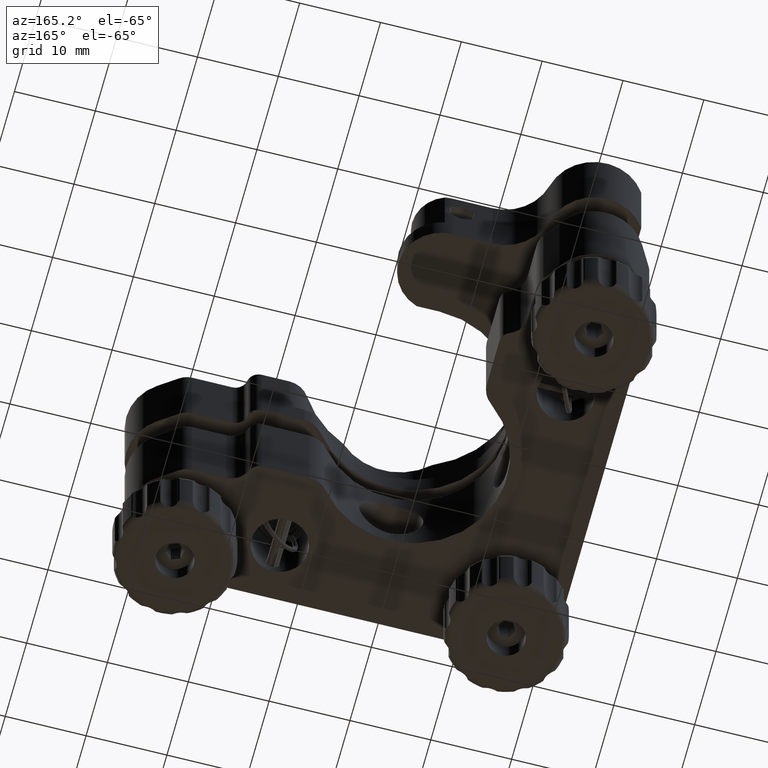
[diagram: clean part render]
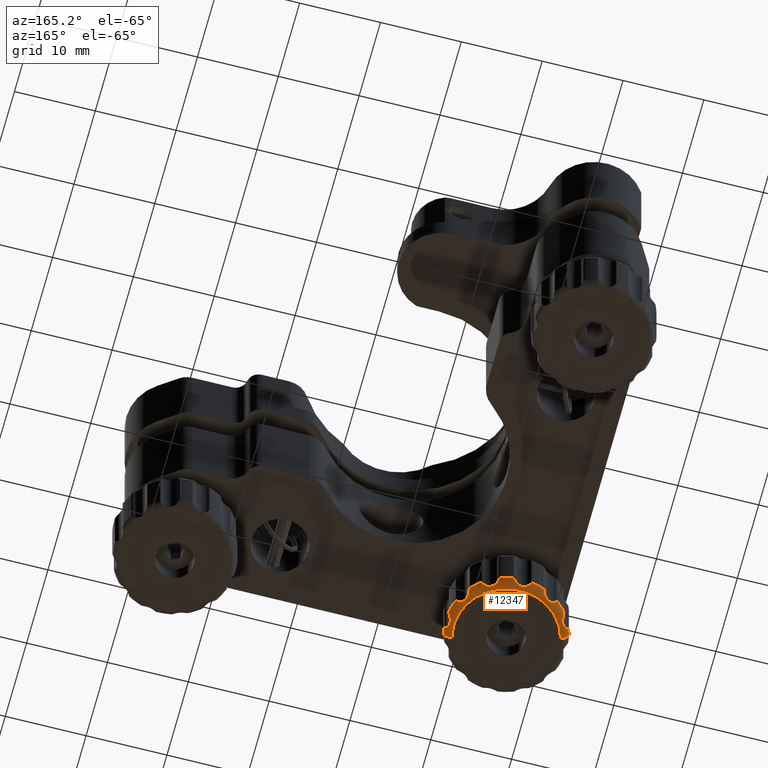
[diagram: same view with one face highlighted and labeled with its STEP entity id]
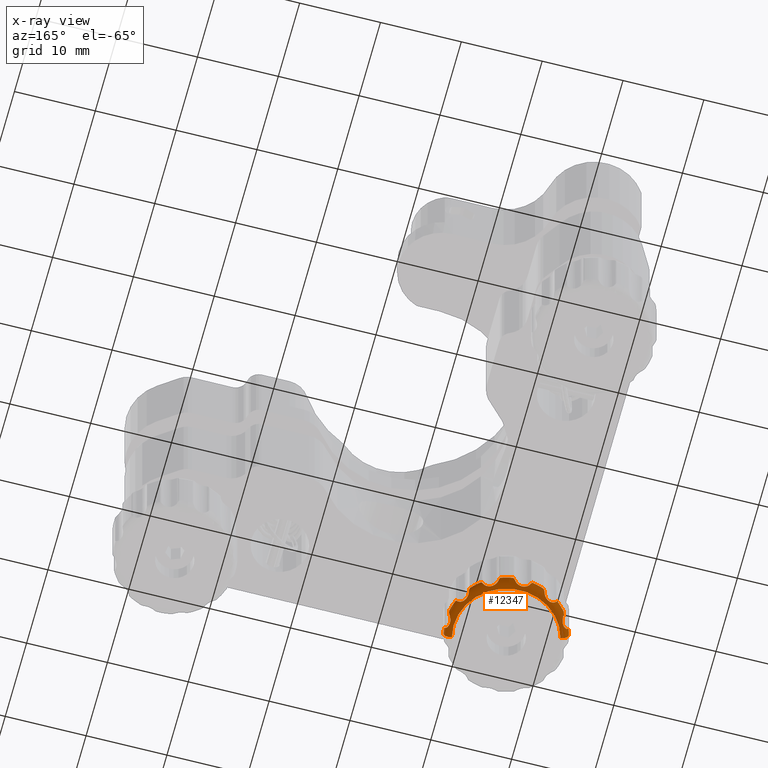
[diagram: x-ray of the same camera — body ghosted, the highlighted face saturated]
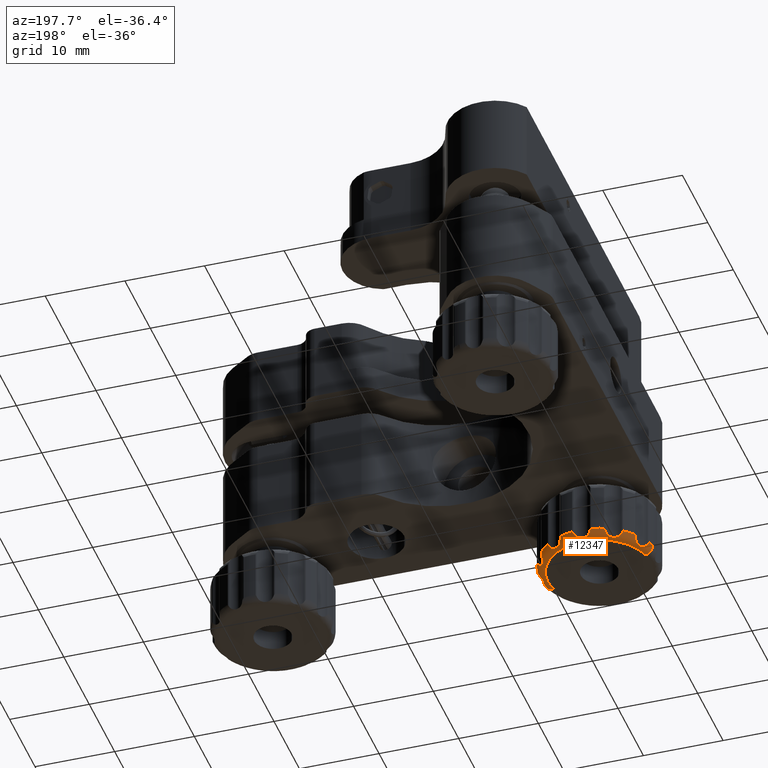
[diagram: same view with one face highlighted and labeled with its STEP entity id]
A machine part, auxiliary view. The second image highlights one B-rep face of the part: STEP entity #12347.
The next image is the same camera in x-ray: the body ghosted, the highlighted face saturated — about 0% of this face is hidden behind the body in this view.
A second angle (auxiliary view) of the same face is appended — the face is thin or edge-on in the first view.
In plain terms, the highlighted toroidal blend (fillet) surface has major radius 6.5 mm and minor (blend) radius 1 mm.
Its self-contained STEP definition (entity closure, byte-faithful):
#107 = CARTESIAN_POINT ( 'NONE',  ( -8.273535023739546200, -14.58432369213429100, -22.45687558293358100 ) ) ;
#113 = CARTESIAN_POINT ( 'NONE',  ( -8.097607238891740200, -14.29118515628994700, -21.97501680634403000 ) ) ;
#124 = CARTESIAN_POINT ( 'NONE',  ( -21.80055024076915500, -13.90216813664769400, -21.82911768350748400 ) ) ;
#156 = CARTESIAN_POINT ( 'NONE',  ( -20.07325600387595400, -9.679605151737613200, -22.26056249868545900 ) ) ;
#200 = CARTESIAN_POINT ( 'NONE',  ( -22.45654522192810600, -12.77960951053181100, -22.12018429843476500 ) ) ;
#206 = CARTESIAN_POINT ( 'NONE',  ( -12.74601820328664400, -8.629246698502537800, -22.26056249868546600 ) ) ;
#209 = CARTESIAN_POINT ( 'NONE',  ( -9.679605151737577600, -10.92674399612406700, -22.26056249868544900 ) ) ;
#224 = B_SPLINE_CURVE_WITH_KNOTS ( 'NONE', 3,
 ( #17145, #10446, #5530, #2470, #5735, #17215, #13886, #757, #10373, #13591, #2313, #10515, #13669, #18772 ),
 .UNSPECIFIED., .F., .F.,
 ( 4, 2, 2, 2, 2, 2, 4 ),
 ( 0.0004549188434784908400, 0.0007454011220209159700, 0.001035883400563341200, 0.001616847957648191500, 0.002197812514733041700, 0.002488294793275470300, 0.002778777071817899400 ),
 .UNSPECIFIED. ) ;
#261 = EDGE_CURVE ( 'NONE', #12622, #15698, #15291, .T. ) ;
#414 = AXIS2_PLACEMENT_3D ( 'NONE', #7455, #10728, #817 ) ;
#465 = B_SPLINE_CURVE_WITH_KNOTS ( 'NONE', 3,
 ( #15938, #21113, #6131, #11059 ),
 .UNSPECIFIED., .F., .F.,
 ( 4, 4 ),
 ( 6.470983621998903000E-016, 0.0004984791478706534600 ),
 .UNSPECIFIED. ) ;
#524 = CARTESIAN_POINT ( 'NONE',  ( -14.40978505370286400, -8.079660966581750300, -21.82911768350747600 ) ) ;
#563 = ORIENTED_EDGE ( 'NONE', *, *, #21157, .F. ) ;
#627 = CARTESIAN_POINT ( 'NONE',  ( -9.252819279464214100, -12.23228101995630700, -22.67200738771641300 ) ) ;
#662 = ORIENTED_EDGE ( 'NONE', *, *, #13350, .T. ) ;
#682 = ORIENTED_EDGE ( 'NONE', *, *, #12650, .T. ) ;
#702 = CARTESIAN_POINT ( 'NONE',  ( -8.079660966581737800, -16.59021494629714900, -21.82911768350748000 ) ) ;
#717 = CARTESIAN_POINT ( 'NONE',  ( -18.26601567763033500, -8.528690419217966200, -21.82911768350747600 ) ) ;
#757 = CARTESIAN_POINT ( 'NONE',  ( -21.70392762690231700, -12.25176406899010900, -22.69505438310907400 ) ) ;
#817 = DIRECTION ( 'NONE',  ( 0.9693154216567880800, -0.2458202866695973500, -4.625929269271472100E-016 ) ) ;
#818 = CARTESIAN_POINT ( 'NONE',  ( -14.95176363915637000, -8.349713461213385200, -22.57261814503169700 ) ) ;
#846 = CARTESIAN_POINT ( 'NONE',  ( -8.705708844528828600, -12.56243734341421900, -22.26056249868348400 ) ) ;
#883 = CARTESIAN_POINT ( 'NONE',  ( -21.44114946354736900, -11.08475258694699100, -22.26056249868347300 ) ) ;
#893 = CARTESIAN_POINT ( 'NONE',  ( -15.20633728887850600, -8.455923303961803600, -22.67200738771642700 ) ) ;
#915 = B_SPLINE_CURVE_WITH_KNOTS ( 'NONE', 3,
 ( #5438, #3792, #10286, #524 ),
 .UNSPECIFIED., .F., .F.,
 ( 4, 4 ),
 ( 6.435192831304974600E-016, 0.0004984791478706576900 ),
 .UNSPECIFIED. ) ;
#999 = CIRCLE ( 'NONE', #19633, 7.500000000000021300 ) ;
#1017 = VERTEX_POINT ( 'NONE', #12284 ) ;
#1020 = AXIS2_PLACEMENT_3D ( 'NONE', #124, #3199, #1619 ) ;
#1131 = CARTESIAN_POINT ( 'NONE',  ( -8.363806012486376700, -16.02208954429704900, -22.59052391230119400 ) ) ;
#1140 = CARTESIAN_POINT ( 'NONE',  ( -19.43662407815705300, -9.650458202698729300, -22.67155288972862700 ) ) ;
#1145 = DIRECTION ( 'NONE',  ( 0.9693154216567918500, -0.2458202866695825800, -4.625929269271472100E-016 ) ) ;
#1194 = CARTESIAN_POINT ( 'NONE',  ( -15.49999999999999500, -15.49999999999999600, -21.82911768350748400 ) ) ;
#1307 = CARTESIAN_POINT ( 'NONE',  ( -16.31903320796983100, -8.327165519919296000, -22.52800768679513200 ) ) ;
#1339 = CARTESIAN_POINT ( 'NONE',  ( -11.45007011483775900, -9.581788393494681700, -22.57261814503168300 ) ) ;
#1508 = CARTESIAN_POINT ( 'NONE',  ( -15.49999999999999500, -15.49999999999999600, -21.82911768350748400 ) ) ;
#1550 = CIRCLE ( 'NONE', #18781, 0.9999999999999997800 ) ;
#1560 = CARTESIAN_POINT ( 'NONE',  ( -9.693747241942546100, -10.75193925632449400, -21.97501680634165300 ) ) ;
#1602 = CARTESIAN_POINT ( 'NONE',  ( -8.172762199410696500, -14.44964154676494800, -22.26056249868547000 ) ) ;
#1619 = DIRECTION ( 'NONE',  ( 0.9693154216567914100, -0.2458202866695847200, 0.0000000000000000000 ) ) ;
#1650 = B_SPLINE_CURVE_WITH_KNOTS ( 'NONE', 3,
 ( #14037, #4110, #2540, #10824 ),
 .UNSPECIFIED., .F., .F.,
 ( 4, 4 ),
 ( -6.324575239409199100E-006, 0.0004951179910539884400 ),
 .UNSPECIFIED. ) ;
#1678 = CARTESIAN_POINT ( 'NONE',  ( -16.55035845323506600, -8.172762199410717800, -22.26056249868545900 ) ) ;
#1773 = CARTESIAN_POINT ( 'NONE',  ( -22.54309943192281200, -12.92225866463510400, -21.82911768350747600 ) ) ;
#1794 = EDGE_CURVE ( 'NONE', #21056, #13386, #11750, .T. ) ;
#1815 = VERTEX_POINT ( 'NONE', #12831 ) ;
#1859 = CARTESIAN_POINT ( 'NONE',  ( -10.84567664421206100, -9.618905365515097100, -21.82911768350746200 ) ) ;
#2183 = CARTESIAN_POINT ( 'NONE',  ( -8.819570278337010900, -12.51824535450036400, -22.41287997174746500 ) ) ;
#2195 = ORIENTED_EDGE ( 'NONE', *, *, #3971, .T. ) ;
#2252 = CARTESIAN_POINT ( 'NONE',  ( -9.033552032651055400, -12.39964334637559400, -22.57261814503168700 ) ) ;
#2313 = CARTESIAN_POINT ( 'NONE',  ( -22.12137348087575700, -12.62288632460462200, -22.52800768679514200 ) ) ;
#2319 = EDGE_CURVE ( 'NONE', #15701, #15698, #224, .T. ) ;
#2363 = ORIENTED_EDGE ( 'NONE', *, *, #8858, .F. ) ;
#2436 = ORIENTED_EDGE ( 'NONE', *, *, #3817, .T. ) ;
#2470 = CARTESIAN_POINT ( 'NONE',  ( -21.41564636080641600, -11.36231130360895300, -22.52836675292864400 ) ) ;
#2540 = CARTESIAN_POINT ( 'NONE',  ( -20.16434964003091000, -9.665800116942911300, -22.12018429843477200 ) ) ;
#2619 = CARTESIAN_POINT ( 'NONE',  ( -8.499463658171862300, -15.52993644919441800, -22.69549184366381300 ) ) ;
#2691 = CARTESIAN_POINT ( 'NONE',  ( -8.501934455099435800, -15.27024179358704200, -22.69477817477042000 ) ) ;
#2703 = CARTESIAN_POINT ( 'NONE',  ( -15.49999999999999500, -15.49999999999999600, -21.82911768350748400 ) ) ;
#2736 = EDGE_CURVE ( 'NONE', #16547, #7758, #5855, .T. ) ;
#2855 = DIRECTION ( 'NONE',  ( 2.162815297346536200E-016, -1.037800054468342500E-016, 1.000000000000000000 ) ) ;
#2867 = CARTESIAN_POINT ( 'NONE',  ( -21.44114946354736900, -11.08475258694699100, -22.26056249868347300 ) ) ;
#2966 = ORIENTED_EDGE ( 'NONE', *, *, #10346, .T. ) ;
#3051 = CARTESIAN_POINT ( 'NONE',  ( -18.76771898004367900, -9.252819279464230100, -22.67200738771642700 ) ) ;
#3135 = CARTESIAN_POINT ( 'NONE',  ( -8.558591890166331600, -12.65862234499994100, -21.97415457370137300 ) ) ;
#3161 = DIRECTION ( 'NONE',  ( 0.9693154216567911900, -0.2458202866695853000, -4.625929269271471100E-016 ) ) ;
#3199 = DIRECTION ( 'NONE',  ( -0.2458202866695841600, -0.9693154216567915200, -4.742917209853352000E-017 ) ) ;
#3225 = CARTESIAN_POINT ( 'NONE',  ( -10.90925306635213400, -9.568590714104969300, -21.97415457369893600 ) ) ;
#3252 = CARTESIAN_POINT ( 'NONE',  ( -8.454740075070004600, -15.01708797932666300, -22.65639691560448600 ) ) ;
#3318 = CARTESIAN_POINT ( 'NONE',  ( -8.217035436622934300, -14.50506699690493100, -22.36864503163590400 ) ) ;
#3373 = EDGE_CURVE ( 'NONE', #20609, #3718, #9447, .T. ) ;
#3436 = ORIENTED_EDGE ( 'NONE', *, *, #1794, .F. ) ;
#3630 = CARTESIAN_POINT ( 'NONE',  ( -12.92225866463505000, -8.456900568077209400, -21.82911768350748700 ) ) ;
#3718 = VERTEX_POINT ( 'NONE', #17154 ) ;
#3792 = CARTESIAN_POINT ( 'NONE',  ( -14.57643678750349600, -8.087769997951433300, -22.12017363735117200 ) ) ;
#3812 = FACE_OUTER_BOUND ( 'NONE', #5450, .T. ) ;
#3817 = EDGE_CURVE ( 'NONE', #5057, #13386, #1650, .T. ) ;
#3861 = CARTESIAN_POINT ( 'NONE',  ( -11.08475258694694600, -9.558850536452631300, -22.26056249868345900 ) ) ;
#3864 = CARTESIAN_POINT ( 'NONE',  ( -22.54309943192281200, -12.92225866463510400, -21.82911768350747600 ) ) ;
#3969 = CARTESIAN_POINT ( 'NONE',  ( -9.687644669754114100, -10.97979340454228100, -22.34231332994502500 ) ) ;
#3971 = EDGE_CURVE ( 'NONE', #21056, #17721, #465, .T. ) ;
#4110 = CARTESIAN_POINT ( 'NONE',  ( -20.24806074367697300, -9.693747241943805500, -21.97501680634272200 ) ) ;
#4171 = VERTEX_POINT ( 'NONE', #11475 ) ;
#4177 = VERTEX_POINT ( 'NONE', #16512 ) ;
#4215 = VERTEX_POINT ( 'NONE', #20304 ) ;
#4511 = B_SPLINE_CURVE_WITH_KNOTS ( 'NONE', 3,
 ( #846, #11961, #2183, #13609, #2252, #627, #8967, #13827, #17090, #20302, #8901, #7117, #3969, #20230 ),
 .UNSPECIFIED., .F., .F.,
 ( 4, 2, 2, 2, 2, 2, 4 ),
 ( 0.0004549188434784903000, 0.0007454011220209277900, 0.001035883400563365300, 0.001616847957648233100, 0.002197812514733101100, 0.002488294793275536700, 0.002778777071817973100 ),
 .UNSPECIFIED. ) ;
#4528 = ORIENTED_EDGE ( 'NONE', *, *, #6792, .F. ) ;
#4778 = B_SPLINE_CURVE_WITH_KNOTS ( 'NONE', 3,
 ( #3252, #16493, #8108, #107, #3318, #1602 ),
 .UNSPECIFIED., .F., .F.,
 ( 4, 2, 4 ),
 ( 0.002010685543980218800, 0.002394731307899068000, 0.002778777071817917600 ),
 .UNSPECIFIED. ) ;
#4803 = EDGE_CURVE ( 'NONE', #1017, #6492, #9889, .T. ) ;
#5040 = CARTESIAN_POINT ( 'NONE',  ( -8.111626302892613400, -14.21083976484987100, -21.82911768350748400 ) ) ;
#5057 = VERTEX_POINT ( 'NONE', #19618 ) ;
#5099 = CARTESIAN_POINT ( 'NONE',  ( -8.111626302892613400, -14.21083976484987100, -21.82911768350748400 ) ) ;
#5153 = B_SPLINE_CURVE_WITH_KNOTS ( 'NONE', 3,
 ( #15486, #5680, #17158, #702 ),
 .UNSPECIFIED., .F., .F.,
 ( 4, 4 ),
 ( 6.631932020556458400E-016, 0.0004984791478706529200 ),
 .UNSPECIFIED. ) ;
#5283 = EDGE_CURVE ( 'NONE', #3718, #10560, #10650, .T. ) ;
#5287 = EDGE_CURVE ( 'NONE', #16032, #4177, #13219, .T. ) ;
#5388 = ORIENTED_EDGE ( 'NONE', *, *, #3373, .F. ) ;
#5438 = CARTESIAN_POINT ( 'NONE',  ( -14.64685830807624500, -8.147189930361157900, -22.26056249868347300 ) ) ;
#5450 = EDGE_LOOP ( 'NONE', ( #5388, #4528, #5727, #9496, #12511, #2363, #2436, #3436, #2195, #14480, #14106, #10042, #682, #20946, #662, #5687, #14992, #13655, #2966, #563, #7883, #9438, #7747, #10066, #15947, #19815, #6575, #15198, #19622 ) ) ;
#5530 = CARTESIAN_POINT ( 'NONE',  ( -21.42249013168643800, -11.20545547559309300, -22.41287997174747900 ) ) ;
#5652 = CARTESIAN_POINT ( 'NONE',  ( -16.62234533887099600, -8.115259870500892700, -22.12018429843476500 ) ) ;
#5680 = CARTESIAN_POINT ( 'NONE',  ( -8.087769997951431500, -16.42356321249651100, -22.12017363735117200 ) ) ;
#5687 = ORIENTED_EDGE ( 'NONE', *, *, #2736, .F. ) ;
#5727 = ORIENTED_EDGE ( 'NONE', *, *, #261, .T. ) ;
#5735 = CARTESIAN_POINT ( 'NONE',  ( -21.41821160650530600, -11.45007011483780200, -22.57261814503169400 ) ) ;
#5840 = CARTESIAN_POINT ( 'NONE',  ( -15.49999999999999500, -15.49999999999999600, -21.82911768350748400 ) ) ;
#5855 = B_SPLINE_CURVE_WITH_KNOTS ( 'NONE', 3,
 ( #10908, #6121, #7776, #6193, #1339, #12756, #14407, #6330, #17795, #11678, #15391, #12474, #10635, #12078 ),
 .UNSPECIFIED., .F., .F.,
 ( 4, 2, 2, 2, 2, 2, 4 ),
 ( 0.0004549188434784903500, 0.0007454011220209176000, 0.001035883400563344900, 0.001616847957648203400, 0.002197812514733062100, 0.002488294793275493300, 0.002778777071817924500 ),
 .UNSPECIFIED. ) ;
#5970 = DIRECTION ( 'NONE',  ( 2.162815297346536200E-016, -1.037800054468342500E-016, 1.000000000000000000 ) ) ;
#6107 = DIRECTION ( 'NONE',  ( 0.9693154216567923000, -0.2458202866695807500, -4.625929269271472100E-016 ) ) ;
#6121 = CARTESIAN_POINT ( 'NONE',  ( -11.13718628945323500, -9.568244080729414200, -22.34172422037581300 ) ) ;
#6122 = CARTESIAN_POINT ( 'NONE',  ( -18.48175464549963100, -8.819570278337025100, -22.41287997174747200 ) ) ;
#6131 = CARTESIAN_POINT ( 'NONE',  ( -18.34137765500027900, -8.558591890166422200, -21.97415457370124900 ) ) ;
#6157 = CARTESIAN_POINT ( 'NONE',  ( -16.50843607689741400, -8.206249330456326900, -22.34231332994503200 ) ) ;
#6193 = CARTESIAN_POINT ( 'NONE',  ( -11.36231130360891600, -9.584353639193572900, -22.52836675292862300 ) ) ;
#6264 = CARTESIAN_POINT ( 'NONE',  ( -19.70798905232488700, -9.692746690196528900, -22.57234060993553000 ) ) ;
#6330 = CARTESIAN_POINT ( 'NONE',  ( -12.25176406899006000, -9.296072373097668900, -22.69505438310906300 ) ) ;
#6401 = DIRECTION ( 'NONE',  ( 0.2458202866695842800, 0.9693154216567915200, 4.742917209853349600E-017 ) ) ;
#6492 = VERTEX_POINT ( 'NONE', #1678 ) ;
#6575 = ORIENTED_EDGE ( 'NONE', *, *, #5287, .F. ) ;
#6792 = EDGE_CURVE ( 'NONE', #12622, #20609, #14962, .T. ) ;
#6818 = EDGE_CURVE ( 'NONE', #9597, #6492, #15678, .T. ) ;
#7048 = CARTESIAN_POINT ( 'NONE',  ( -8.172762199410696500, -14.44964154676494800, -22.26056249868547000 ) ) ;
#7070 = DIRECTION ( 'NONE',  ( 0.9693154216567914100, -0.2458202866695844700, 0.0000000000000000000 ) ) ;
#7117 = CARTESIAN_POINT ( 'NONE',  ( -9.694980619095142400, -11.04747110949786700, -22.41247193503569700 ) ) ;
#7210 = CARTESIAN_POINT ( 'NONE',  ( -15.49999999999999500, -15.49999999999999600, -21.82911768350748400 ) ) ;
#7313 = CARTESIAN_POINT ( 'NONE',  ( -14.64685830807624500, -8.147189930361157900, -22.26056249868347300 ) ) ;
#7316 = VERTEX_POINT ( 'NONE', #10259 ) ;
#7369 = CARTESIAN_POINT ( 'NONE',  ( -21.38109463448491000, -10.84567664421209300, -21.82911768350747600 ) ) ;
#7455 = CARTESIAN_POINT ( 'NONE',  ( -15.49999999999999500, -15.49999999999999600, -21.82911768350748400 ) ) ;
#7534 = CARTESIAN_POINT ( 'NONE',  ( -14.87447965637681300, -8.308055623541145400, -22.52836675292863300 ) ) ;
#7538 = CARTESIAN_POINT ( 'NONE',  ( -9.199449759230827100, -17.09783186335230100, -22.82911768350748400 ) ) ;
#7606 = EDGE_CURVE ( 'NONE', #11817, #1815, #8376, .T. ) ;
#7641 = CARTESIAN_POINT ( 'NONE',  ( -19.79572080468530600, -9.697659727094095000, -22.52800768679513900 ) ) ;
#7747 = ORIENTED_EDGE ( 'NONE', *, *, #16974, .T. ) ;
#7758 = VERTEX_POINT ( 'NONE', #206 ) ;
#7776 = CARTESIAN_POINT ( 'NONE',  ( -11.20545547559305700, -9.577509868313562400, -22.41287997174745800 ) ) ;
#7883 = ORIENTED_EDGE ( 'NONE', *, *, #7606, .T. ) ;
#7907 = CARTESIAN_POINT ( 'NONE',  ( -20.02020659545772900, -9.687644669754140700, -22.34231332994503200 ) ) ;
#7938 = CARTESIAN_POINT ( 'NONE',  ( -11.08475258694694600, -9.558850536452631300, -22.26056249868345900 ) ) ;
#8056 = VERTEX_POINT ( 'NONE', #7048 ) ;
#8108 = CARTESIAN_POINT ( 'NONE',  ( -8.377687875453251100, -14.78049113031570800, -22.58759470679152100 ) ) ;
#8176 = EDGE_CURVE ( 'NONE', #8846, #8690, #20196, .T. ) ;
#8223 = CARTESIAN_POINT ( 'NONE',  ( -10.84567664421206100, -9.618905365515097100, -21.82911768350746200 ) ) ;
#8341 = CARTESIAN_POINT ( 'NONE',  ( -22.51506760176424000, -12.84566798256898900, -21.97501680634308800 ) ) ;
#8376 = B_SPLINE_CURVE_WITH_KNOTS ( 'NONE', 3,
 ( #9420, #20918, #3135, #21256 ),
 .UNSPECIFIED., .F., .F.,
 ( 4, 4 ),
 ( 6.550229476071373700E-016, 0.0004984791478706550900 ),
 .UNSPECIFIED. ) ;
#8690 = VERTEX_POINT ( 'NONE', #11938 ) ;
#8846 = VERTEX_POINT ( 'NONE', #12799 ) ;
#8858 = EDGE_CURVE ( 'NONE', #5057, #7316, #10851, .T. ) ;
#8901 = CARTESIAN_POINT ( 'NONE',  ( -9.697659727094070100, -11.20427919531469600, -22.52800768679512400 ) ) ;
#8967 = CARTESIAN_POINT ( 'NONE',  ( -9.386787200454733700, -12.08472653913656100, -22.69523134601928800 ) ) ;
#9019 = CARTESIAN_POINT ( 'NONE',  ( -16.78916023515016000, -8.111626302892647200, -21.82911768350747600 ) ) ;
#9190 = CARTESIAN_POINT ( 'NONE',  ( -8.253355673187408900, -16.21872772926297300, -22.45952716626074500 ) ) ;
#9271 = DIRECTION ( 'NONE',  ( 2.162815297346536200E-016, -1.037800054468342500E-016, 1.000000000000000000 ) ) ;
#9420 = CARTESIAN_POINT ( 'NONE',  ( -8.705708844528828600, -12.56243734341421900, -22.26056249868348400 ) ) ;
#9438 = ORIENTED_EDGE ( 'NONE', *, *, #14183, .F. ) ;
#9442 = CARTESIAN_POINT ( 'NONE',  ( -16.24059876325840400, -8.366776581336480900, -22.57234060993552300 ) ) ;
#9447 = CIRCLE ( 'NONE', #1020, 0.9999999999999997800 ) ;
#9496 = ORIENTED_EDGE ( 'NONE', *, *, #2319, .F. ) ;
#9597 = VERTEX_POINT ( 'NONE', #20572 ) ;
#9715 = CARTESIAN_POINT ( 'NONE',  ( -10.99405579495297800, -9.542602125781016300, -22.12017363735115400 ) ) ;
#9840 = CARTESIAN_POINT ( 'NONE',  ( -9.746060803227329900, -10.68936763825758100, -21.82911768350747300 ) ) ;
#9853 = CARTESIAN_POINT ( 'NONE',  ( -12.84566798256888000, -8.484932398235805800, -21.97501680634306400 ) ) ;
#9889 = B_SPLINE_CURVE_WITH_KNOTS ( 'NONE', 3,
 ( #7313, #18907, #17356, #7534, #818, #893, #20721, #15893, #20650, #9442, #1307, #14368, #6157, #19130 ),
 .UNSPECIFIED., .F., .F.,
 ( 4, 2, 2, 2, 2, 2, 4 ),
 ( 0.0004549188434784898100, 0.0007454011220209108700, 0.001035883400563331900, 0.001616847957648180400, 0.002197812514733028700, 0.002488294793275455100, 0.002778777071817882000 ),
 .UNSPECIFIED. ) ;
#10042 = ORIENTED_EDGE ( 'NONE', *, *, #4803, .F. ) ;
#10066 = ORIENTED_EDGE ( 'NONE', *, *, #20260, .F. ) ;
#10069 = EDGE_CURVE ( 'NONE', #9597, #17721, #11313, .T. ) ;
#10259 = CARTESIAN_POINT ( 'NONE',  ( -21.38109463448491000, -10.84567664421209300, -21.82911768350747600 ) ) ;
#10260 = DIRECTION ( 'NONE',  ( 0.9693154216567914100, -0.2458202866695844400, -4.625929269271472100E-016 ) ) ;
#10286 = CARTESIAN_POINT ( 'NONE',  ( -14.49000117605672800, -8.067875411348982300, -21.97415457370247800 ) ) ;
#10313 = B_SPLINE_CURVE_WITH_KNOTS ( 'NONE', 3,
 ( #9840, #1560, #14558, #209 ),
 .UNSPECIFIED., .F., .F.,
 ( 4, 4 ),
 ( -6.324575239419812400E-006, 0.0004951179910539838800 ),
 .UNSPECIFIED. ) ;
#10346 = EDGE_CURVE ( 'NONE', #12594, #4171, #10313, .T. ) ;
#10373 = CARTESIAN_POINT ( 'NONE',  ( -21.83398735548413000, -12.40246024211675800, -22.67155288972862700 ) ) ;
#10446 = CARTESIAN_POINT ( 'NONE',  ( -21.43175591927058900, -11.13718628945326600, -22.34172422037583400 ) ) ;
#10515 = CARTESIAN_POINT ( 'NONE',  ( -22.25851282071141300, -12.69897019192648800, -22.41247193503572200 ) ) ;
#10560 = VERTEX_POINT ( 'NONE', #7538 ) ;
#10635 = CARTESIAN_POINT ( 'NONE',  ( -12.72645592591401000, -8.679208592856719300, -22.34231332994503900 ) ) ;
#10650 = CIRCLE ( 'NONE', #17877, 6.500000000000019500 ) ;
#10728 = DIRECTION ( 'NONE',  ( 2.162815297346536200E-016, -1.037800054468342500E-016, 1.000000000000000000 ) ) ;
#10732 = TOROIDAL_SURFACE ( 'NONE', #12869, 6.500000000000000000, 1.000000000000000000 ) ;
#10824 = CARTESIAN_POINT ( 'NONE',  ( -20.07325600387595400, -9.679605151737613200, -22.26056249868545900 ) ) ;
#10851 = CIRCLE ( 'NONE', #12030, 7.500000000000023100 ) ;
#10887 = DIRECTION ( 'NONE',  ( 0.9693154216567914100, -0.2458202866695844100, -2.351562528808334900E-016 ) ) ;
#10908 = CARTESIAN_POINT ( 'NONE',  ( -11.08475258694694600, -9.558850536452631300, -22.26056249868345900 ) ) ;
#10909 = CARTESIAN_POINT ( 'NONE',  ( -18.45564445986366000, -8.755814535052175900, -22.34172422037582400 ) ) ;
#11050 = CARTESIAN_POINT ( 'NONE',  ( -20.07325600387595400, -9.679605151737613200, -22.26056249868545900 ) ) ;
#11059 = CARTESIAN_POINT ( 'NONE',  ( -18.26601567763033500, -8.528690419217966200, -21.82911768350747600 ) ) ;
#11313 = CIRCLE ( 'NONE', #16434, 7.500000000000021300 ) ;
#11475 = CARTESIAN_POINT ( 'NONE',  ( -9.679605151737577600, -10.92674399612406700, -22.26056249868544900 ) ) ;
#11541 = CARTESIAN_POINT ( 'NONE',  ( -8.705708844528828600, -12.56243734341421900, -22.26056249868348400 ) ) ;
#11567 = VERTEX_POINT ( 'NONE', #13993 ) ;
#11678 = CARTESIAN_POINT ( 'NONE',  ( -12.57476563366133100, -8.952147926938112100, -22.57234060993552300 ) ) ;
#11750 = B_SPLINE_CURVE_WITH_KNOTS ( 'NONE', 3,
 ( #14473, #10909, #6122, #17455, #19370, #3051, #17604, #21033, #1140, #6264, #7641, #20826, #7907, #11050 ),
 .UNSPECIFIED., .F., .F.,
 ( 4, 2, 2, 2, 2, 2, 4 ),
 ( 0.0004549188434784830300, 0.0007454011220209123900, 0.001035883400563341900, 0.001616847957648193200, 0.002197812514733044300, 0.002488294793275472100, 0.002778777071817899800 ),
 .UNSPECIFIED. ) ;
#11759 = EDGE_CURVE ( 'NONE', #16032, #10560, #1550, .T. ) ;
#11817 = VERTEX_POINT ( 'NONE', #11541 ) ;
#11938 = CARTESIAN_POINT ( 'NONE',  ( -8.454740075070004600, -15.01708797932666300, -22.65639691560448600 ) ) ;
#11961 = CARTESIAN_POINT ( 'NONE',  ( -8.755814535052172300, -12.54435554013633200, -22.34172422037582400 ) ) ;
#12030 = AXIS2_PLACEMENT_3D ( 'NONE', #1508, #19548, #3161 ) ;
#12078 = CARTESIAN_POINT ( 'NONE',  ( -12.74601820328664400, -8.629246698502537800, -22.26056249868546600 ) ) ;
#12208 = CIRCLE ( 'NONE', #17451, 7.500000000000021300 ) ;
#12284 = CARTESIAN_POINT ( 'NONE',  ( -14.64685830807624500, -8.147189930361157900, -22.26056249868347300 ) ) ;
#12296 = CARTESIAN_POINT ( 'NONE',  ( -16.70881484370718800, -8.097607238891262300, -21.97501680634237400 ) ) ;
#12347 = ADVANCED_FACE ( 'NONE', ( #3812 ), #10732, .T. ) ;
#12400 = CARTESIAN_POINT ( 'NONE',  ( -8.147189930361120600, -16.35314169192379900, -22.26056249868347300 ) ) ;
#12459 = CARTESIAN_POINT ( 'NONE',  ( -8.230134337574039400, -17.34365215002188500, -21.82911768350748400 ) ) ;
#12474 = CARTESIAN_POINT ( 'NONE',  ( -12.69897019192642100, -8.741487179288594000, -22.41247193503570000 ) ) ;
#12511 = ORIENTED_EDGE ( 'NONE', *, *, #15518, .T. ) ;
#12536 = CARTESIAN_POINT ( 'NONE',  ( -8.413432227157169800, -15.90599280851116900, -22.63259662859898900 ) ) ;
#12594 = VERTEX_POINT ( 'NONE', #16702 ) ;
#12622 = VERTEX_POINT ( 'NONE', #3864 ) ;
#12633 = CARTESIAN_POINT ( 'NONE',  ( -15.49999999999999500, -15.49999999999999600, -21.82911768350748400 ) ) ;
#12650 = EDGE_CURVE ( 'NONE', #1017, #4215, #915, .T. ) ;
#12756 = CARTESIAN_POINT ( 'NONE',  ( -11.72364228400546400, -9.546481990585697000, -22.67200738771640900 ) ) ;
#12799 = CARTESIAN_POINT ( 'NONE',  ( -8.147189930361120600, -16.35314169192379900, -22.26056249868347300 ) ) ;
#12831 = CARTESIAN_POINT ( 'NONE',  ( -8.528690419217955600, -12.73398432236968400, -21.82911768350748400 ) ) ;
#12869 = AXIS2_PLACEMENT_3D ( 'NONE', #17504, #20803, #10887 ) ;
#13140 = CARTESIAN_POINT ( 'NONE',  ( -12.77960951053177200, -8.543454778071897200, -22.12018429843477600 ) ) ;
#13175 = AXIS2_PLACEMENT_3D ( 'NONE', #7210, #20252, #10260 ) ;
#13202 = EDGE_CURVE ( 'NONE', #16547, #16958, #17443, .T. ) ;
#13219 = CIRCLE ( 'NONE', #13175, 7.500000000000021300 ) ;
#13350 = EDGE_CURVE ( 'NONE', #11567, #7758, #14254, .T. ) ;
#13386 = VERTEX_POINT ( 'NONE', #156 ) ;
#13532 = CARTESIAN_POINT ( 'NONE',  ( -18.43756265658580100, -8.705708844528862400, -22.26056249868347000 ) ) ;
#13591 = CARTESIAN_POINT ( 'NONE',  ( -22.04785207306187900, -12.57476563366138800, -22.57234060993553400 ) ) ;
#13609 = CARTESIAN_POINT ( 'NONE',  ( -8.958833295570400400, -12.44574431993221000, -22.52836675292862300 ) ) ;
#13655 = ORIENTED_EDGE ( 'NONE', *, *, #20757, .F. ) ;
#13669 = CARTESIAN_POINT ( 'NONE',  ( -22.32079140714328600, -12.72645592591407400, -22.34231332994504300 ) ) ;
#13827 = CARTESIAN_POINT ( 'NONE',  ( -9.584981352808840800, -11.75135903736743400, -22.69505438310907100 ) ) ;
#13886 = CARTESIAN_POINT ( 'NONE',  ( -21.51431997775117100, -11.91343914728536800, -22.69523134601928800 ) ) ;
#13993 = CARTESIAN_POINT ( 'NONE',  ( -12.92225866463505000, -8.456900568077209400, -21.82911768350748700 ) ) ;
#13995 = DIRECTION ( 'NONE',  ( 0.9693154216567914100, -0.2458202866695844400, -4.625929269271472100E-016 ) ) ;
#14037 = CARTESIAN_POINT ( 'NONE',  ( -20.31063236174242100, -9.746060803227361900, -21.82911768350747600 ) ) ;
#14106 = ORIENTED_EDGE ( 'NONE', *, *, #6818, .T. ) ;
#14183 = EDGE_CURVE ( 'NONE', #16377, #1815, #12208, .T. ) ;
#14214 = EDGE_CURVE ( 'NONE', #11567, #4215, #999, .T. ) ;
#14254 = B_SPLINE_CURVE_WITH_KNOTS ( 'NONE', 3,
 ( #3630, #9853, #13140, #14791 ),
 .UNSPECIFIED., .F., .F.,
 ( 4, 4 ),
 ( -6.324575239407064600E-006, 0.0004951179910539898500 ),
 .UNSPECIFIED. ) ;
#14282 = DIRECTION ( 'NONE',  ( 0.9693154216567914100, -0.2458202866695844400, -4.625929269271472100E-016 ) ) ;
#14368 = CARTESIAN_POINT ( 'NONE',  ( -16.45349343980656800, -8.246441301424326300, -22.41247193503571100 ) ) ;
#14407 = CARTESIAN_POINT ( 'NONE',  ( -11.91343914728531700, -9.485680022248827100, -22.69523134601927000 ) ) ;
#14473 = CARTESIAN_POINT ( 'NONE',  ( -18.43756265658580100, -8.705708844528862400, -22.26056249868347000 ) ) ;
#14480 = ORIENTED_EDGE ( 'NONE', *, *, #10069, .F. ) ;
#14558 = CARTESIAN_POINT ( 'NONE',  ( -9.665800116942865100, -10.83565035996912800, -22.12018429843475400 ) ) ;
#14791 = CARTESIAN_POINT ( 'NONE',  ( -12.74601820328664400, -8.629246698502537800, -22.26056249868546600 ) ) ;
#14895 = CARTESIAN_POINT ( 'NONE',  ( -8.172762199410696500, -14.44964154676494800, -22.26056249868547000 ) ) ;
#14962 = CIRCLE ( 'NONE', #414, 7.500000000000022200 ) ;
#14992 = ORIENTED_EDGE ( 'NONE', *, *, #13202, .T. ) ;
#15198 = ORIENTED_EDGE ( 'NONE', *, *, #11759, .T. ) ;
#15291 = B_SPLINE_CURVE_WITH_KNOTS ( 'NONE', 3,
 ( #1773, #8341, #200, #17944 ),
 .UNSPECIFIED., .F., .F.,
 ( 4, 4 ),
 ( -6.324575239421446400E-006, 0.0004951179910539965700 ),
 .UNSPECIFIED. ) ;
#15391 = CARTESIAN_POINT ( 'NONE',  ( -12.62288632460456300, -8.878626519124253500, -22.52800768679513200 ) ) ;
#15430 = CARTESIAN_POINT ( 'NONE',  ( -15.49999999999998600, -15.50000000000000000, -22.82911768350748400 ) ) ;
#15486 = CARTESIAN_POINT ( 'NONE',  ( -8.147189930361120600, -16.35314169192379900, -22.26056249868347300 ) ) ;
#15518 = EDGE_CURVE ( 'NONE', #15701, #7316, #19007, .T. ) ;
#15678 = B_SPLINE_CURVE_WITH_KNOTS ( 'NONE', 3,
 ( #9019, #12296, #5652, #17132 ),
 .UNSPECIFIED., .F., .F.,
 ( 4, 4 ),
 ( -6.324575239416496300E-006, 0.0004951179910539980900 ),
 .UNSPECIFIED. ) ;
#15698 = VERTEX_POINT ( 'NONE', #16099 ) ;
#15701 = VERTEX_POINT ( 'NONE', #2867 ) ;
#15893 = CARTESIAN_POINT ( 'NONE',  ( -15.78890897971117400, -8.503123106357525900, -22.69505438310908500 ) ) ;
#15938 = CARTESIAN_POINT ( 'NONE',  ( -18.43756265658580100, -8.705708844528862400, -22.26056249868347000 ) ) ;
#15947 = ORIENTED_EDGE ( 'NONE', *, *, #8176, .F. ) ;
#16032 = VERTEX_POINT ( 'NONE', #12459 ) ;
#16071 = B_SPLINE_CURVE_WITH_KNOTS ( 'NONE', 3,
 ( #5040, #113, #19798, #14895 ),
 .UNSPECIFIED., .F., .F.,
 ( 4, 4 ),
 ( -6.324575239420736600E-006, 0.0004951179910539887600 ),
 .UNSPECIFIED. ) ;
#16099 = CARTESIAN_POINT ( 'NONE',  ( -22.37075330149746200, -12.74601820328668100, -22.26056249868545900 ) ) ;
#16148 = CARTESIAN_POINT ( 'NONE',  ( -9.199449759230832400, -17.09783186335230100, -21.82911768350748400 ) ) ;
#16377 = VERTEX_POINT ( 'NONE', #5099 ) ;
#16434 = AXIS2_PLACEMENT_3D ( 'NONE', #1194, #5970, #6107 ) ;
#16493 = CARTESIAN_POINT ( 'NONE',  ( -8.424024848838570300, -14.89597209067911800, -22.62996315733790500 ) ) ;
#16512 = CARTESIAN_POINT ( 'NONE',  ( -8.079660966581737800, -16.59021494629714900, -21.82911768350748000 ) ) ;
#16547 = VERTEX_POINT ( 'NONE', #3861 ) ;
#16702 = CARTESIAN_POINT ( 'NONE',  ( -9.746060803227329900, -10.68936763825758100, -21.82911768350747300 ) ) ;
#16958 = VERTEX_POINT ( 'NONE', #1859 ) ;
#16974 = EDGE_CURVE ( 'NONE', #16377, #8056, #16071, .T. ) ;
#17090 = CARTESIAN_POINT ( 'NONE',  ( -9.650458202698706200, -11.56337592184294600, -22.67155288972862700 ) ) ;
#17132 = CARTESIAN_POINT ( 'NONE',  ( -16.55035845323506600, -8.172762199410717800, -22.26056249868545900 ) ) ;
#17145 = CARTESIAN_POINT ( 'NONE',  ( -21.44114946354736900, -11.08475258694699100, -22.26056249868347300 ) ) ;
#17154 = CARTESIAN_POINT ( 'NONE',  ( -21.80055024076915200, -13.90216813664769400, -22.82911768350748400 ) ) ;
#17158 = CARTESIAN_POINT ( 'NONE',  ( -8.067875411348673300, -16.50999882394123500, -21.97415457370131300 ) ) ;
#17215 = CARTESIAN_POINT ( 'NONE',  ( -21.45351800941428500, -11.72364228400550700, -22.67200738771642700 ) ) ;
#17235 = CARTESIAN_POINT ( 'NONE',  ( -8.485846866667982300, -15.13974788353754900, -22.68316765801590400 ) ) ;
#17308 = CARTESIAN_POINT ( 'NONE',  ( -8.480887328231059300, -15.66049686826466700, -22.68461338309519700 ) ) ;
#17356 = CARTESIAN_POINT ( 'NONE',  ( -14.74206041002344700, -8.223700830093442000, -22.41287997174747600 ) ) ;
#17443 = B_SPLINE_CURVE_WITH_KNOTS ( 'NONE', 3,
 ( #7938, #9715, #3225, #8223 ),
 .UNSPECIFIED., .F., .F.,
 ( 4, 4 ),
 ( 6.518245101708856000E-016, 0.0004984791478706649500 ),
 .UNSPECIFIED. ) ;
#17451 = AXIS2_PLACEMENT_3D ( 'NONE', #5840, #9271, #13995 ) ;
#17455 = CARTESIAN_POINT ( 'NONE',  ( -18.55425568006779000, -8.958833295570414600, -22.52836675292863000 ) ) ;
#17462 = DIRECTION ( 'NONE',  ( 2.162815297346536200E-016, -1.037800054468342500E-016, 1.000000000000000000 ) ) ;
#17504 = CARTESIAN_POINT ( 'NONE',  ( -15.49999999999999500, -15.49999999999999600, -21.82911768350748400 ) ) ;
#17604 = CARTESIAN_POINT ( 'NONE',  ( -18.91527346086344600, -9.386787200454753200, -22.69523134601928800 ) ) ;
#17721 = VERTEX_POINT ( 'NONE', #717 ) ;
#17795 = CARTESIAN_POINT ( 'NONE',  ( -12.40246024211670100, -9.166012644515861400, -22.67155288972862700 ) ) ;
#17877 = AXIS2_PLACEMENT_3D ( 'NONE', #15430, #20039, #7070 ) ;
#17944 = CARTESIAN_POINT ( 'NONE',  ( -22.37075330149746200, -12.74601820328668100, -22.26056249868545900 ) ) ;
#18559 = CIRCLE ( 'NONE', #19990, 7.500000000000021300 ) ;
#18772 = CARTESIAN_POINT ( 'NONE',  ( -22.37075330149746200, -12.74601820328668100, -22.26056249868545900 ) ) ;
#18781 = AXIS2_PLACEMENT_3D ( 'NONE', #16148, #6401, #20903 ) ;
#18822 = CARTESIAN_POINT ( 'NONE',  ( -21.45739787421899800, -10.99405579495301700, -22.12017363735117200 ) ) ;
#18862 = CARTESIAN_POINT ( 'NONE',  ( -8.454740075070004600, -15.01708797932666300, -22.65639691560448600 ) ) ;
#18907 = CARTESIAN_POINT ( 'NONE',  ( -14.68757045432274200, -8.181541829589592800, -22.34172422037583800 ) ) ;
#18963 = CARTESIAN_POINT ( 'NONE',  ( -22.76986566242594600, -13.65634784997810800, -21.82911768350748400 ) ) ;
#19007 = B_SPLINE_CURVE_WITH_KNOTS ( 'NONE', 3,
 ( #883, #18822, #19051, #7369 ),
 .UNSPECIFIED., .F., .F.,
 ( 4, 4 ),
 ( 6.548000940246928000E-016, 0.0004984791478706697200 ),
 .UNSPECIFIED. ) ;
#19013 = CARTESIAN_POINT ( 'NONE',  ( -8.193185456479586300, -16.29863010368325500, -22.36923410560379500 ) ) ;
#19051 = CARTESIAN_POINT ( 'NONE',  ( -21.43140928589186300, -10.90925306634816400, -21.97415457370180600 ) ) ;
#19130 = CARTESIAN_POINT ( 'NONE',  ( -16.55035845323506600, -8.172762199410717800, -22.26056249868545900 ) ) ;
#19370 = CARTESIAN_POINT ( 'NONE',  ( -18.60035665362440600, -9.033552032651073200, -22.57261814503168700 ) ) ;
#19548 = DIRECTION ( 'NONE',  ( 2.162815297346536200E-016, -1.037800054468342500E-016, 1.000000000000000000 ) ) ;
#19618 = CARTESIAN_POINT ( 'NONE',  ( -20.31063236174242100, -9.746060803227361900, -21.82911768350747600 ) ) ;
#19622 = ORIENTED_EDGE ( 'NONE', *, *, #5283, .F. ) ;
#19633 = AXIS2_PLACEMENT_3D ( 'NONE', #2703, #17462, #1145 ) ;
#19798 = CARTESIAN_POINT ( 'NONE',  ( -8.115259870500874900, -14.37765466112901400, -22.12018429843477900 ) ) ;
#19815 = ORIENTED_EDGE ( 'NONE', *, *, #21209, .T. ) ;
#19990 = AXIS2_PLACEMENT_3D ( 'NONE', #12633, #2855, #14282 ) ;
#20039 = DIRECTION ( 'NONE',  ( -2.162815297346536200E-016, 1.037800054468342500E-016, -1.000000000000000000 ) ) ;
#20196 = B_SPLINE_CURVE_WITH_KNOTS ( 'NONE', 3,
 ( #12400, #19013, #9190, #1131, #12536, #17308, #2619, #2691, #17235, #18862 ),
 .UNSPECIFIED., .F., .F.,
 ( 4, 2, 2, 2, 4 ),
 ( 0.0004549188434784780500, 0.0008438605186039132700, 0.001232802193729348400, 0.001621743868854783800, 0.002010685543980218800 ),
 .UNSPECIFIED. ) ;
#20230 = CARTESIAN_POINT ( 'NONE',  ( -9.679605151737577600, -10.92674399612406700, -22.26056249868544900 ) ) ;
#20252 = DIRECTION ( 'NONE',  ( 2.162815297346536200E-016, -1.037800054468342500E-016, 1.000000000000000000 ) ) ;
#20260 = EDGE_CURVE ( 'NONE', #8690, #8056, #4778, .T. ) ;
#20302 = CARTESIAN_POINT ( 'NONE',  ( -9.692746690196504000, -11.29201094767512400, -22.57234060993553000 ) ) ;
#20304 = CARTESIAN_POINT ( 'NONE',  ( -14.40978505370286400, -8.079660966581750300, -21.82911768350747600 ) ) ;
#20572 = CARTESIAN_POINT ( 'NONE',  ( -16.78916023515016000, -8.111626302892647200, -21.82911768350747600 ) ) ;
#20609 = VERTEX_POINT ( 'NONE', #18963 ) ;
#20650 = CARTESIAN_POINT ( 'NONE',  ( -15.98444555818285700, -8.465836163959684400, -22.67155288972862700 ) ) ;
#20721 = CARTESIAN_POINT ( 'NONE',  ( -15.40110717820590500, -8.498165686421907900, -22.69523134601928800 ) ) ;
#20757 = EDGE_CURVE ( 'NONE', #12594, #16958, #18559, .T. ) ;
#20803 = DIRECTION ( 'NONE',  ( -2.162815297346536200E-016, 1.037800054468342500E-016, -1.000000000000000000 ) ) ;
#20826 = CARTESIAN_POINT ( 'NONE',  ( -19.95252889050214400, -9.694980619095167300, -22.41247193503570800 ) ) ;
#20903 = DIRECTION ( 'NONE',  ( -0.9693154216567914100, 0.2458202866695847200, 0.0000000000000000000 ) ) ;
#20918 = CARTESIAN_POINT ( 'NONE',  ( -8.619038913284491300, -12.59371420299846600, -22.12017363735118600 ) ) ;
#20946 = ORIENTED_EDGE ( 'NONE', *, *, #14214, .F. ) ;
#21033 = CARTESIAN_POINT ( 'NONE',  ( -19.24864096263257100, -9.584981352808865700, -22.69505438310907100 ) ) ;
#21056 = VERTEX_POINT ( 'NONE', #13532 ) ;
#21113 = CARTESIAN_POINT ( 'NONE',  ( -18.40628579700154800, -8.619038913284509100, -22.12017363735117200 ) ) ;
#21157 = EDGE_CURVE ( 'NONE', #11817, #4171, #4511, .T. ) ;
#21209 = EDGE_CURVE ( 'NONE', #8846, #4177, #5153, .T. ) ;
#21256 = CARTESIAN_POINT ( 'NONE',  ( -8.528690419217955600, -12.73398432236968400, -21.82911768350748400 ) ) ;